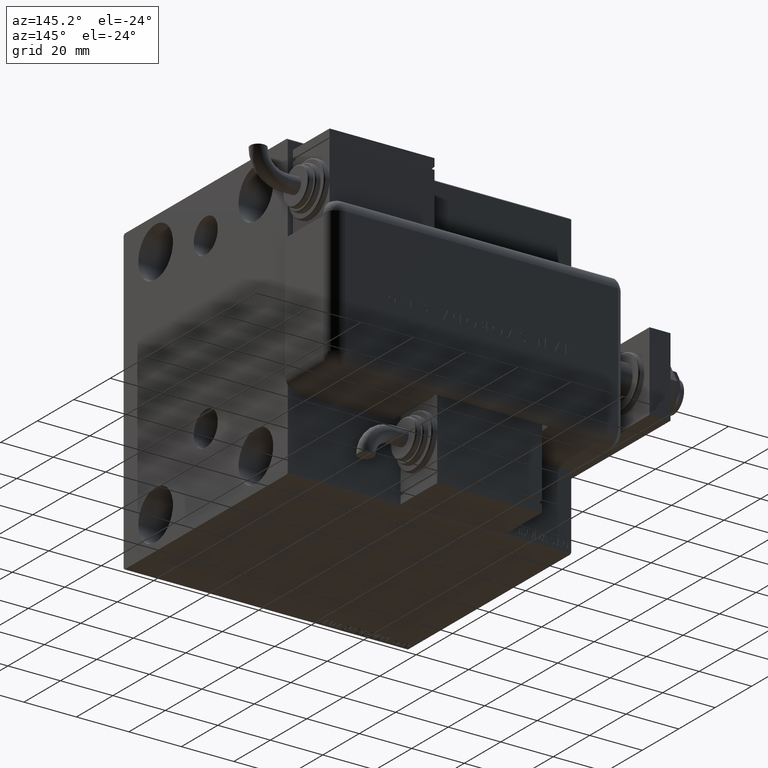
[diagram: clean part render]
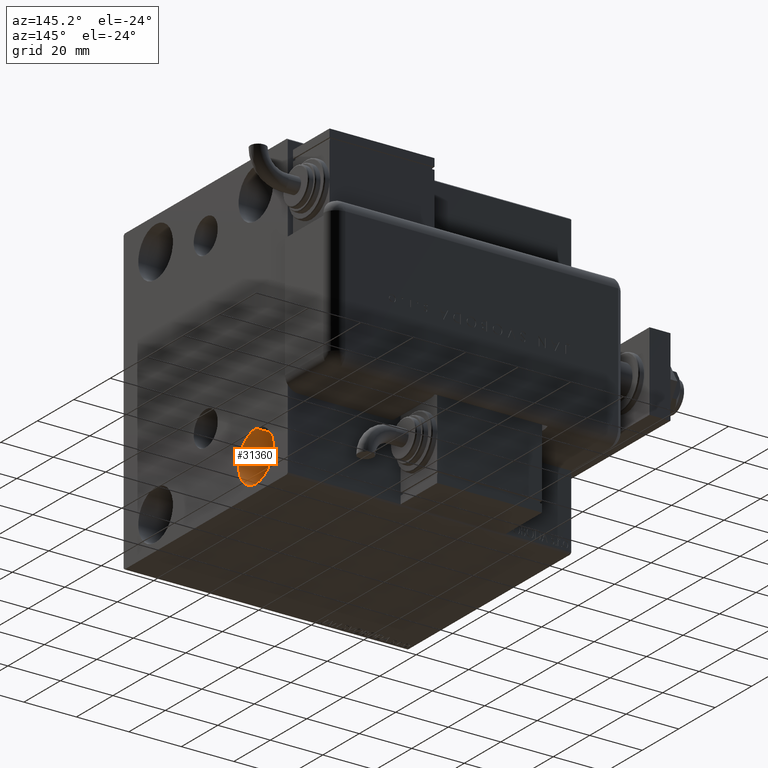
[diagram: same view with one face highlighted and labeled with its STEP entity id]
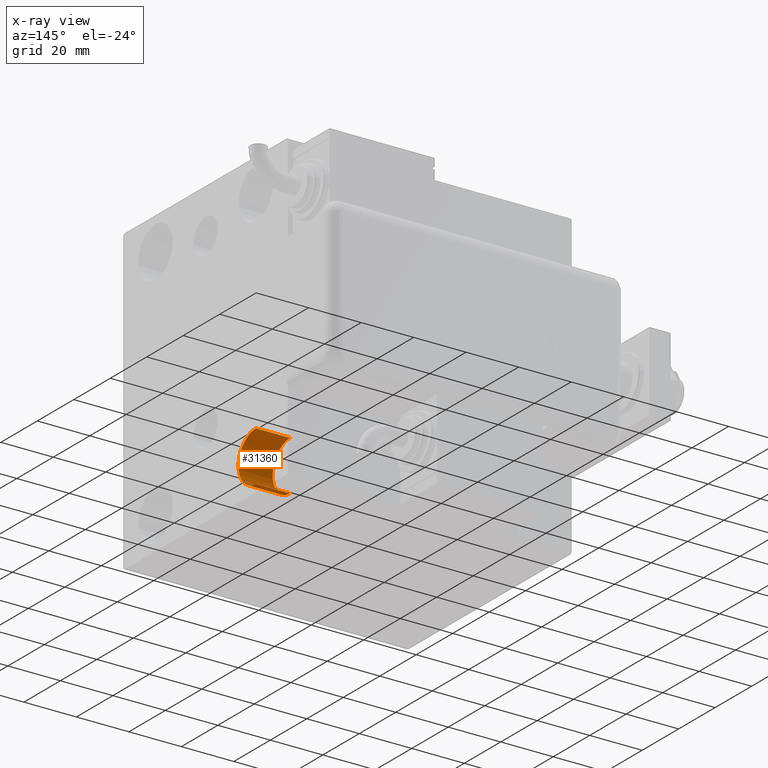
[diagram: x-ray of the same camera — body ghosted, the highlighted face saturated]
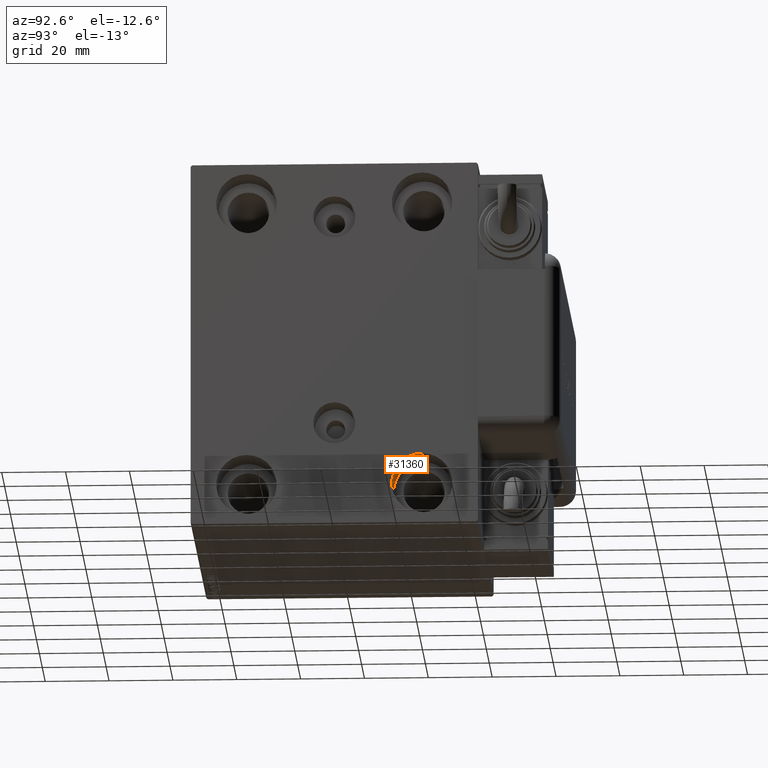
[diagram: same view with one face highlighted and labeled with its STEP entity id]
A machine part, auxiliary view. The second image highlights one B-rep face of the part: STEP entity #31360.
The next image is the same camera in x-ray: the body ghosted, the highlighted face saturated — about 0% of this face is hidden behind the body in this view.
A second angle (auxiliary view) of the same face is appended — the face is thin or edge-on in the first view.
In plain terms, the highlighted cylindrical surface (edge-blend (fillet) strip) has radius 9.5 mm, axis along (1, 0, 0).
Its self-contained STEP definition (entity closure, byte-faithful):
#923 = LINE ( 'NONE', #24109, #4627 ) ;
#1818 = EDGE_CURVE ( 'NONE', #38113, #19591, #923, .T. ) ;
#3808 = AXIS2_PLACEMENT_3D ( 'NONE', #52079, #23460, #46079 ) ;
#4001 = DIRECTION ( 'NONE',  ( 1.000000000000000000, -0.000000000000000000, -0.000000000000000000 ) ) ;
#4117 = VERTEX_POINT ( 'NONE', #11387 ) ;
#4364 = CARTESIAN_POINT ( 'NONE',  ( 95.00000000000000000, 27.49999999999998934, -35.49999999999998579 ) ) ;
#4588 = VECTOR ( 'NONE', #11184, 1000.000000000000000 ) ;
#4627 = VECTOR ( 'NONE', #38274, 1000.000000000000000 ) ;
#4898 = EDGE_CURVE ( 'NONE', #19591, #4117, #42231, .T. ) ;
#8461 = DIRECTION ( 'NONE',  ( -1.000000000000000000, -0.000000000000000000, -0.000000000000000000 ) ) ;
#9424 = EDGE_CURVE ( 'NONE', #38113, #14866, #28001, .T. ) ;
#11184 = DIRECTION ( 'NONE',  ( 1.000000000000000000, -0.000000000000000000, -0.000000000000000000 ) ) ;
#11387 = CARTESIAN_POINT ( 'NONE',  ( 108.0000000000000000, 27.49999999999998934, -35.49999999999998579 ) ) ;
#13039 = FACE_OUTER_BOUND ( 'NONE', #20613, .T. ) ;
#14866 = VERTEX_POINT ( 'NONE', #4364 ) ;
#17851 = DIRECTION ( 'NONE',  ( 0.000000000000000000, 0.000000000000000000, -1.000000000000000000 ) ) ;
#19591 = VERTEX_POINT ( 'NONE', #41773 ) ;
#20613 = EDGE_LOOP ( 'NONE', ( #25673, #34440, #55423, #26882 ) ) ;
#23460 = DIRECTION ( 'NONE',  ( -1.000000000000000000, -0.000000000000000000, -0.000000000000000000 ) ) ;
#24109 = CARTESIAN_POINT ( 'NONE',  ( 95.00000000000000000, 27.49999999999998934, -54.49999999999998579 ) ) ;
#25673 = ORIENTED_EDGE ( 'NONE', *, *, #9424, .T. ) ;
#26882 = ORIENTED_EDGE ( 'NONE', *, *, #1818, .F. ) ;
#28001 = CIRCLE ( 'NONE', #56871, 9.500000000000001776 ) ;
#31360 = ADVANCED_FACE ( 'NONE', ( #13039 ), #31416, .F. ) ;
#31416 = CYLINDRICAL_SURFACE ( 'NONE', #49784, 9.500000000000001776 ) ;
#34440 = ORIENTED_EDGE ( 'NONE', *, *, #43238, .T. ) ;
#35277 = CARTESIAN_POINT ( 'NONE',  ( 95.00000000000000000, 27.49999999999998934, -44.99999999999998579 ) ) ;
#35887 = DIRECTION ( 'NONE',  ( 0.000000000000000000, 0.000000000000000000, 1.000000000000000000 ) ) ;
#38113 = VERTEX_POINT ( 'NONE', #41106 ) ;
#38274 = DIRECTION ( 'NONE',  ( 1.000000000000000000, -0.000000000000000000, -0.000000000000000000 ) ) ;
#39190 = CARTESIAN_POINT ( 'NONE',  ( 95.00000000000000000, 27.49999999999998934, -35.49999999999998579 ) ) ;
#41106 = CARTESIAN_POINT ( 'NONE',  ( 95.00000000000000000, 27.49999999999998934, -54.49999999999998579 ) ) ;
#41773 = CARTESIAN_POINT ( 'NONE',  ( 108.0000000000000000, 27.49999999999998934, -54.49999999999998579 ) ) ;
#42231 = CIRCLE ( 'NONE', #3808, 9.500000000000001776 ) ;
#43238 = EDGE_CURVE ( 'NONE', #14866, #4117, #57872, .T. ) ;
#45281 = CARTESIAN_POINT ( 'NONE',  ( 95.00000000000000000, 27.49999999999998934, -44.99999999999998579 ) ) ;
#46079 = DIRECTION ( 'NONE',  ( 0.000000000000000000, 0.000000000000000000, 1.000000000000000000 ) ) ;
#49784 = AXIS2_PLACEMENT_3D ( 'NONE', #45281, #4001, #17851 ) ;
#52079 = CARTESIAN_POINT ( 'NONE',  ( 108.0000000000000000, 27.49999999999998934, -44.99999999999998579 ) ) ;
#55423 = ORIENTED_EDGE ( 'NONE', *, *, #4898, .F. ) ;
#56871 = AXIS2_PLACEMENT_3D ( 'NONE', #35277, #8461, #35887 ) ;
#57872 = LINE ( 'NONE', #39190, #4588 ) ;